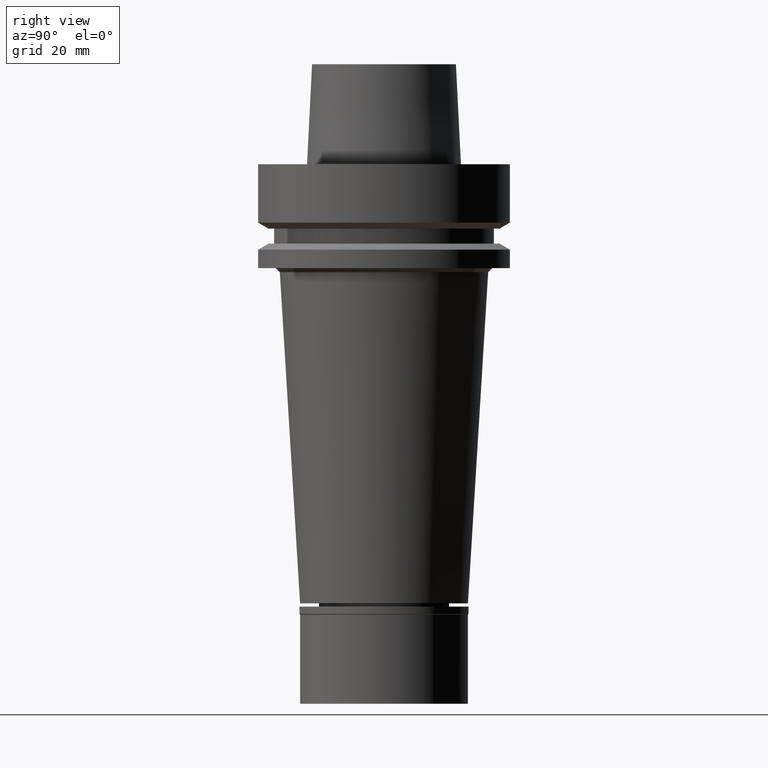
[diagram: clean part render]
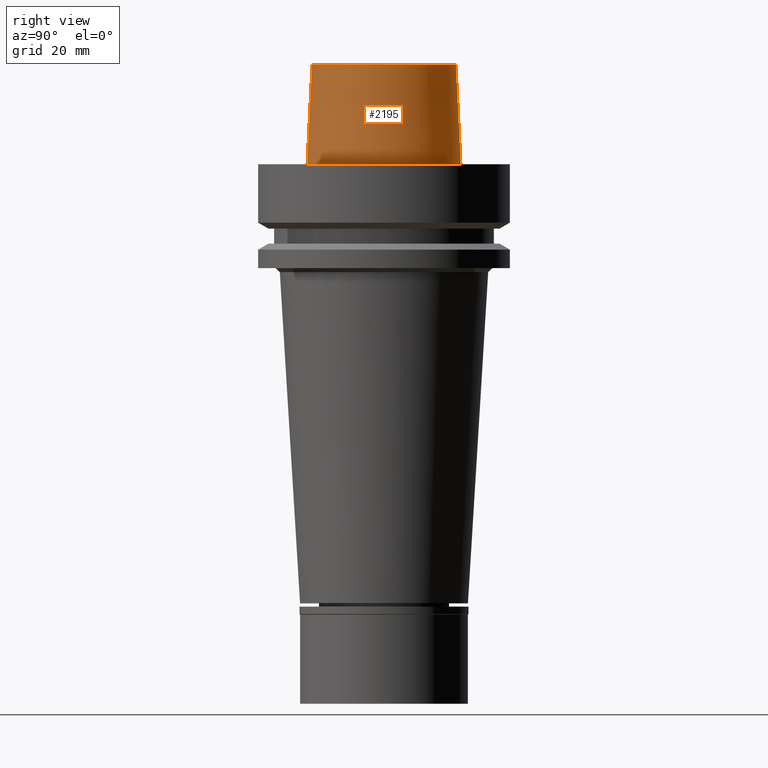
[diagram: same view with one face highlighted and labeled with its STEP entity id]
A machine part, right view. The second image highlights one B-rep face of the part: STEP entity #2195.
In plain terms, the highlighted conical surface has half-angle 2.862 deg.
Its self-contained STEP definition (entity closure, byte-faithful):
#152 = EDGE_LOOP ( 'NONE', ( #2685, #2442, #1112, #1330 ) ) ;
#231 = CONICAL_SURFACE ( 'NONE', #2344, 18.62500068580999724, 0.04995830450907576964 ) ;
#287 = LINE ( 'NONE', #473, #1235 ) ;
#345 = FACE_OUTER_BOUND ( 'NONE', #152, .T. ) ;
#473 = CARTESIAN_POINT ( 'NONE',  ( 0.0000000000000000000, -18.00000182882000033, 25.00000000000000000 ) ) ;
#570 = DIRECTION ( 'NONE',  ( 0.0000000000000000000, 1.000000000000000000, 0.0000000000000000000 ) ) ;
#804 = CARTESIAN_POINT ( 'NONE',  ( 0.0000000000000000000, 19.24999954280000125, 3.410605131648000255E-13 ) ) ;
#1048 = EDGE_CURVE ( 'NONE', #1381, #1627, #1585, .T. ) ;
#1091 = CARTESIAN_POINT ( 'NONE',  ( 0.0000000000000000000, 18.00000182882000033, 25.00000000000000000 ) ) ;
#1112 = ORIENTED_EDGE ( 'NONE', *, *, #1048, .T. ) ;
#1192 = EDGE_CURVE ( 'NONE', #2655, #1627, #2673, .T. ) ;
#1235 = VECTOR ( 'NONE', #2705, 999.9999999999998863 ) ;
#1330 = ORIENTED_EDGE ( 'NONE', *, *, #1192, .F. ) ;
#1381 = VERTEX_POINT ( 'NONE', #1457 ) ;
#1457 = CARTESIAN_POINT ( 'NONE',  ( 0.0000000000000000000, -19.24999954280000125, 3.410605131648000255E-13 ) ) ;
#1471 = VERTEX_POINT ( 'NONE', #1920 ) ;
#1548 = DIRECTION ( 'NONE',  ( 0.0000000000000000000, 0.0000000000000000000, 1.000000000000000000 ) ) ;
#1585 = CIRCLE ( 'NONE', #1959, 19.24999954280000125 ) ;
#1627 = VERTEX_POINT ( 'NONE', #804 ) ;
#1714 = EDGE_CURVE ( 'NONE', #2655, #1471, #2302, .T. ) ;
#1752 = DIRECTION ( 'NONE',  ( 0.0000000000000000000, 0.04993752584486958745, -0.9987523434327917338 ) ) ;
#1842 = VECTOR ( 'NONE', #1752, 999.9999999999998863 ) ;
#1845 = AXIS2_PLACEMENT_3D ( 'NONE', #2330, #2786, #570 ) ;
#1869 = DIRECTION ( 'NONE',  ( 0.0000000000000000000, -1.000000000000000000, 0.0000000000000000000 ) ) ;
#1920 = CARTESIAN_POINT ( 'NONE',  ( 0.0000000000000000000, -18.00000182882000033, 25.00000000000000000 ) ) ;
#1959 = AXIS2_PLACEMENT_3D ( 'NONE', #2858, #1548, #2419 ) ;
#2043 = CARTESIAN_POINT ( 'NONE',  ( 0.0000000000000000000, 18.00000182882000033, 25.00000000000000000 ) ) ;
#2061 = CARTESIAN_POINT ( 'NONE',  ( 0.0000000000000000000, 0.0000000000000000000, 12.50000000000000000 ) ) ;
#2195 = ADVANCED_FACE ( 'NONE', ( #345 ), #231, .T. ) ;
#2288 = DIRECTION ( 'NONE',  ( 0.0000000000000000000, 0.0000000000000000000, -1.000000000000000000 ) ) ;
#2302 = CIRCLE ( 'NONE', #1845, 18.00000182882000033 ) ;
#2330 = CARTESIAN_POINT ( 'NONE',  ( 0.0000000000000000000, 0.0000000000000000000, 25.00000000000000000 ) ) ;
#2344 = AXIS2_PLACEMENT_3D ( 'NONE', #2061, #2288, #1869 ) ;
#2419 = DIRECTION ( 'NONE',  ( 0.0000000000000000000, -1.000000000000000000, 0.0000000000000000000 ) ) ;
#2442 = ORIENTED_EDGE ( 'NONE', *, *, #2644, .T. ) ;
#2644 = EDGE_CURVE ( 'NONE', #1471, #1381, #287, .T. ) ;
#2655 = VERTEX_POINT ( 'NONE', #2043 ) ;
#2673 = LINE ( 'NONE', #1091, #1842 ) ;
#2685 = ORIENTED_EDGE ( 'NONE', *, *, #1714, .T. ) ;
#2705 = DIRECTION ( 'NONE',  ( 0.0000000000000000000, -0.04993752584486958745, -0.9987523434327917338 ) ) ;
#2786 = DIRECTION ( 'NONE',  ( 0.0000000000000000000, 0.0000000000000000000, -1.000000000000000000 ) ) ;
#2858 = CARTESIAN_POINT ( 'NONE',  ( 0.0000000000000000000, 0.0000000000000000000, 5.115907697473000027E-13 ) ) ;